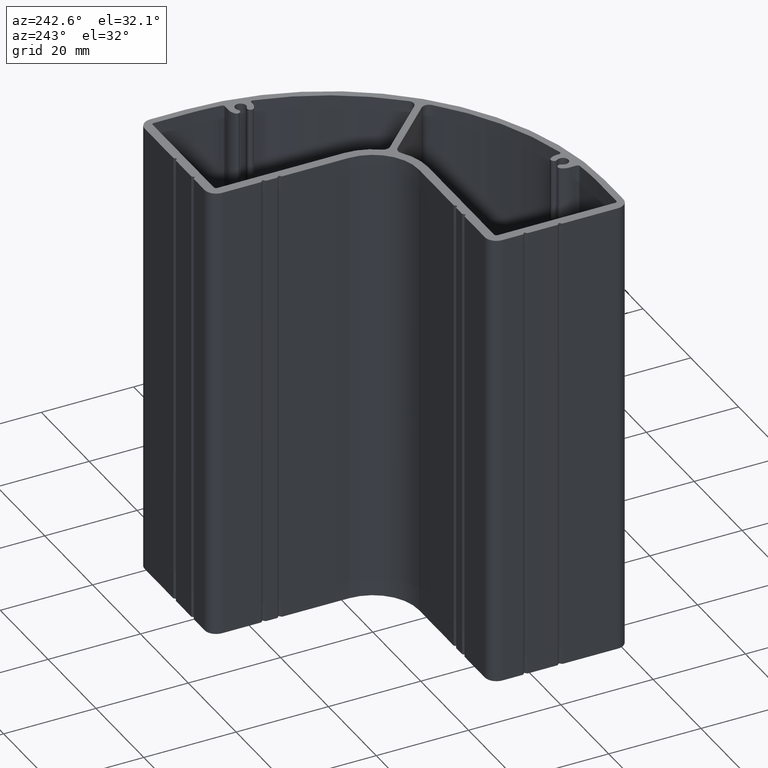
[diagram: clean part render]
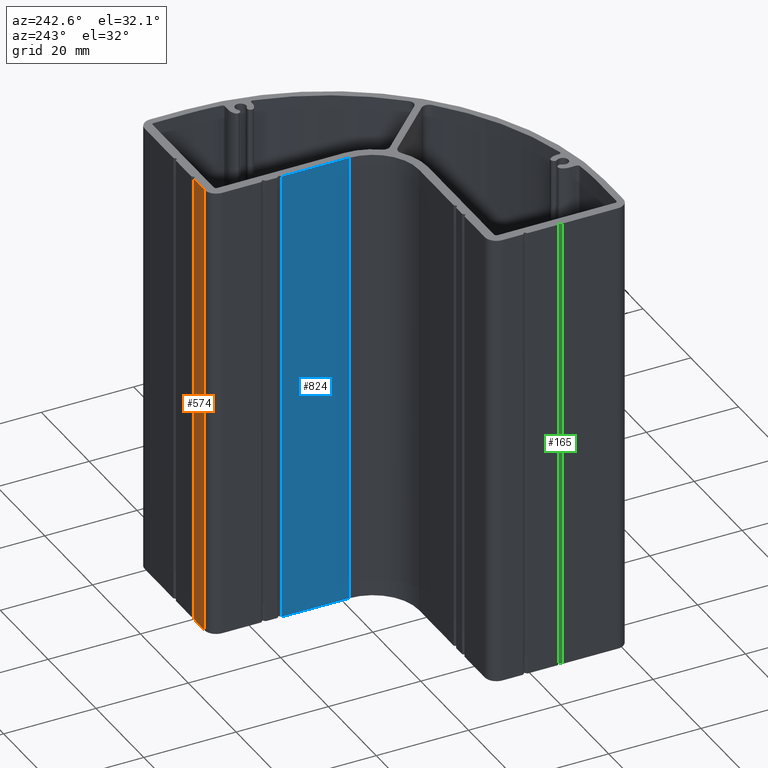
[diagram: same view with three faces highlighted in distinct colors, each labeled with its STEP entity id]
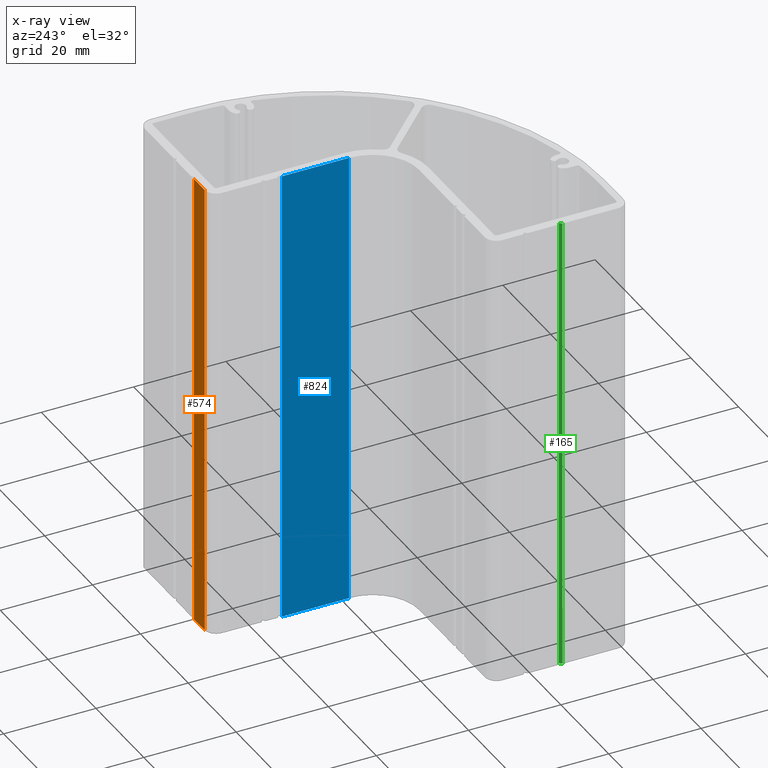
[diagram: x-ray of the same camera — body ghosted, the three highlighted faces saturated]
A machine part, auxiliary view with three faces highlighted in distinct colors.
The next image is the same camera in x-ray (body ghosted, the three faces saturated) — at least one of them is partly hidden behind the body in this view.
Their STEP definitions:

[orange] entity #574 — the highlighted planar face has unit normal (0, -1, 0).
#519=CARTESIAN_POINT('',(17.0,30.0,0.0));
#520=VERTEX_POINT('',#519);
#527=CARTESIAN_POINT('',(17.0,30.0,100.0));
#528=VERTEX_POINT('',#527);
#529=CARTESIAN_POINT('',(17.0,30.0,100.0));
#530=DIRECTION('',(0.0,0.0,-1.0));
#531=VECTOR('',#530,100.0);
#532=LINE('',#529,#531);
#533=EDGE_CURVE('',#528,#520,#532,.T.);
#544=CARTESIAN_POINT('',(17.0,30.0,100.0));
#545=DIRECTION('',(0.0,-1.0,0.0));
#546=DIRECTION('',(-1.0,0.0,0.0));
#547=AXIS2_PLACEMENT_3D('',#544,#545,#546);
#548=PLANE('',#547);
#549=ORIENTED_EDGE('',*,*,#533,.T.);
#550=CARTESIAN_POINT('',(12.500000000000000,30.0,0.0));
#551=VERTEX_POINT('',#550);
#552=CARTESIAN_POINT('',(17.0,30.0,0.0));
#553=DIRECTION('',(-1.0,0.0,0.0));
#554=VECTOR('',#553,4.500000000000000);
#555=LINE('',#552,#554);
#556=EDGE_CURVE('',#520,#551,#555,.T.);
#557=ORIENTED_EDGE('',*,*,#556,.T.);
#558=CARTESIAN_POINT('',(12.500000000000000,30.0,100.0));
#559=VERTEX_POINT('',#558);
#560=CARTESIAN_POINT('',(12.500000000000000,30.0,100.0));
#561=DIRECTION('',(0.0,0.0,-1.0));
#562=VECTOR('',#561,100.0);
#563=LINE('',#560,#562);
#564=EDGE_CURVE('',#559,#551,#563,.T.);
#565=ORIENTED_EDGE('',*,*,#564,.F.);
#566=CARTESIAN_POINT('',(17.0,30.0,100.0));
#567=DIRECTION('',(-1.0,0.0,0.0));
#568=VECTOR('',#567,4.500000000000000);
#569=LINE('',#566,#568);
#570=EDGE_CURVE('',#528,#559,#569,.T.);
#571=ORIENTED_EDGE('',*,*,#570,.F.);
#572=EDGE_LOOP('',(#549,#557,#565,#571));
#573=FACE_OUTER_BOUND('',#572,.T.);
#574=ADVANCED_FACE('',(#573),#548,.F.);

[blue] entity #824 — the highlighted planar face has unit normal (1, 0, 0).
#769=CARTESIAN_POINT('',(10.000000000000114,14.500000000000000,0.0));
#770=VERTEX_POINT('',#769);
#777=CARTESIAN_POINT('',(10.000000000000114,14.500000000000000,100.0));
#778=VERTEX_POINT('',#777);
#779=CARTESIAN_POINT('',(10.000000000000114,14.500000000000000,100.0));
#780=DIRECTION('',(0.0,0.0,-1.0));
#781=VECTOR('',#780,100.0);
#782=LINE('',#779,#781);
#783=EDGE_CURVE('',#778,#770,#782,.T.);
#794=CARTESIAN_POINT('',(10.000000000000114,14.500000000000000,100.0));
#795=DIRECTION('',(1.0,0.0,0.0));
#796=DIRECTION('',(0.0,-1.0,0.0));
#797=AXIS2_PLACEMENT_3D('',#794,#795,#796);
#798=PLANE('',#797);
#799=ORIENTED_EDGE('',*,*,#783,.T.);
#800=CARTESIAN_POINT('',(10.0,0.0,0.0));
#801=VERTEX_POINT('',#800);
#802=CARTESIAN_POINT('',(10.000000000000114,14.500000000000000,0.0));
#803=DIRECTION('',(0.0,-1.0,0.0));
#804=VECTOR('',#803,14.500000000000000);
#805=LINE('',#802,#804);
#806=EDGE_CURVE('',#770,#801,#805,.T.);
#807=ORIENTED_EDGE('',*,*,#806,.T.);
#808=CARTESIAN_POINT('',(10.0,0.0,100.0));
#809=VERTEX_POINT('',#808);
#810=CARTESIAN_POINT('',(10.0,0.0,100.0));
#811=DIRECTION('',(0.0,0.0,-1.0));
#812=VECTOR('',#811,100.0);
#813=LINE('',#810,#812);
#814=EDGE_CURVE('',#809,#801,#813,.T.);
#815=ORIENTED_EDGE('',*,*,#814,.F.);
#816=CARTESIAN_POINT('',(10.000000000000114,14.500000000000000,100.0));
#817=DIRECTION('',(0.0,-1.0,0.0));
#818=VECTOR('',#817,14.500000000000000);
#819=LINE('',#816,#818);
#820=EDGE_CURVE('',#778,#809,#819,.T.);
#821=ORIENTED_EDGE('',*,*,#820,.F.);
#822=EDGE_LOOP('',(#799,#807,#815,#821));
#823=FACE_OUTER_BOUND('',#822,.T.);
#824=ADVANCED_FACE('',(#823),#798,.F.);

[green] entity #165 — the highlighted planar face has unit normal (0.7071, -0.7071, 0).
#110=CARTESIAN_POINT('',(-29.500000000000000,-25.0,0.0));
#111=VERTEX_POINT('',#110);
#118=CARTESIAN_POINT('',(-29.500000000000000,-25.0,100.0));
#119=VERTEX_POINT('',#118);
#120=CARTESIAN_POINT('',(-29.500000000000000,-25.0,100.0));
#121=DIRECTION('',(0.0,0.0,-1.0));
#122=VECTOR('',#121,100.0);
#123=LINE('',#120,#122);
#124=EDGE_CURVE('',#119,#111,#123,.T.);
#135=CARTESIAN_POINT('',(-29.500000000000000,-25.0,100.0));
#136=DIRECTION('',(0.707106781186548,-0.707106781186548,0.0));
#137=DIRECTION('',(-0.707106781186548,-0.707106781186548,0.0));
#138=AXIS2_PLACEMENT_3D('',#135,#136,#137);
#139=PLANE('',#138);
#140=ORIENTED_EDGE('',*,*,#124,.T.);
#141=CARTESIAN_POINT('',(-30.0,-25.500000000000000,0.0));
#142=VERTEX_POINT('',#141);
#143=CARTESIAN_POINT('',(-29.500000000000000,-25.0,0.0));
#144=DIRECTION('',(-0.707106781186547,-0.707106781186547,0.0));
#145=VECTOR('',#144,0.707106781186548);
#146=LINE('',#143,#145);
#147=EDGE_CURVE('',#111,#142,#146,.T.);
#148=ORIENTED_EDGE('',*,*,#147,.T.);
#149=CARTESIAN_POINT('',(-30.0,-25.500000000000000,100.0));
#150=VERTEX_POINT('',#149);
#151=CARTESIAN_POINT('',(-30.0,-25.500000000000000,100.0));
#152=DIRECTION('',(0.0,0.0,-1.0));
#153=VECTOR('',#152,100.0);
#154=LINE('',#151,#153);
#155=EDGE_CURVE('',#150,#142,#154,.T.);
#156=ORIENTED_EDGE('',*,*,#155,.F.);
#157=CARTESIAN_POINT('',(-29.500000000000000,-25.0,100.0));
#158=DIRECTION('',(-0.707106781186547,-0.707106781186547,0.0));
#159=VECTOR('',#158,0.707106781186548);
#160=LINE('',#157,#159);
#161=EDGE_CURVE('',#119,#150,#160,.T.);
#162=ORIENTED_EDGE('',*,*,#161,.F.);
#163=EDGE_LOOP('',(#140,#148,#156,#162));
#164=FACE_OUTER_BOUND('',#163,.T.);
#165=ADVANCED_FACE('',(#164),#139,.F.);